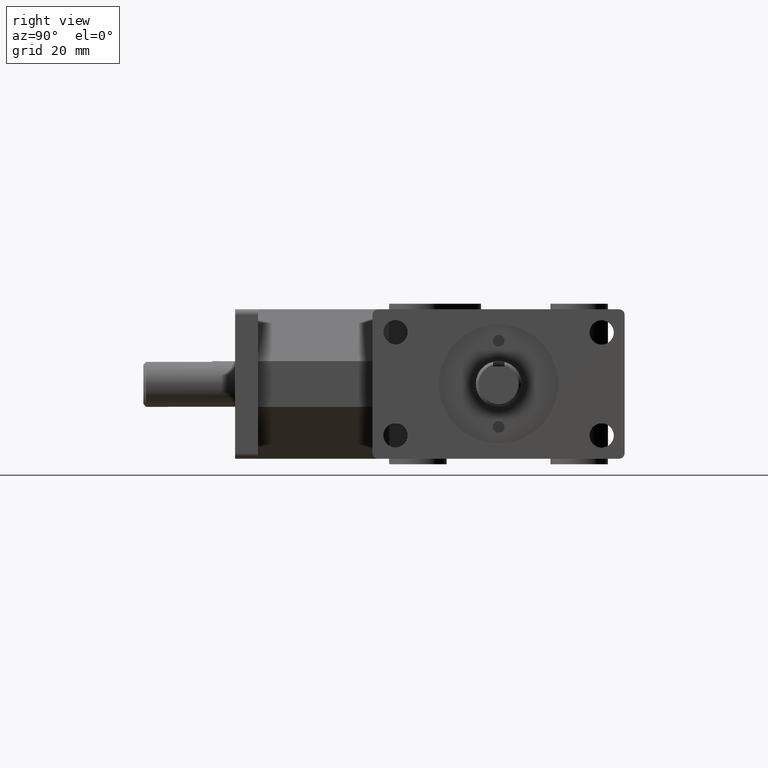
[diagram: clean part render]
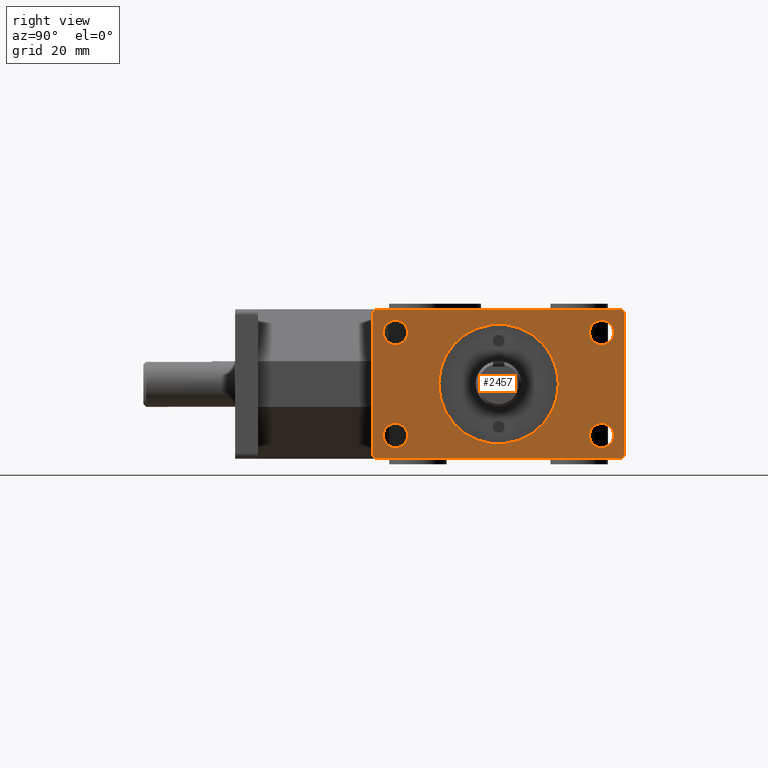
[diagram: same view with one face highlighted and labeled with its STEP entity id]
A machine part, right view. The second image highlights one B-rep face of the part: STEP entity #2457.
In plain terms, the highlighted planar face has unit normal (1, 0, 0).
Its self-contained STEP definition (entity closure, byte-faithful):
#56=FACE_BOUND('',#466,.T.);
#57=FACE_BOUND('',#467,.T.);
#58=FACE_BOUND('',#468,.T.);
#59=FACE_BOUND('',#469,.T.);
#60=FACE_BOUND('',#470,.T.);
#136=CIRCLE('',#2592,0.652);
#159=CIRCLE('',#2628,0.06);
#161=CIRCLE('',#2631,0.06);
#163=CIRCLE('',#2634,0.06);
#165=CIRCLE('',#2637,0.06);
#195=CIRCLE('',#2701,0.1325);
#196=CIRCLE('',#2702,0.1325);
#197=CIRCLE('',#2703,0.1325);
#198=CIRCLE('',#2704,0.1325);
#299=FACE_OUTER_BOUND('',#465,.T.);
#465=EDGE_LOOP('',(#2016,#2017,#2018,#2019,#2020,#2021,#2022,#2023));
#466=EDGE_LOOP('',(#2024));
#467=EDGE_LOOP('',(#2025));
#468=EDGE_LOOP('',(#2026));
#469=EDGE_LOOP('',(#2027));
#470=EDGE_LOOP('',(#2028));
#552=LINE('',#3535,#780);
#610=LINE('',#3673,#838);
#715=LINE('',#4061,#943);
#716=LINE('',#4063,#944);
#780=VECTOR('',#2794,1.);
#838=VECTOR('',#2882,1.);
#943=VECTOR('',#3299,1.);
#944=VECTOR('',#3302,1.);
#1008=VERTEX_POINT('',#3532);
#1009=VERTEX_POINT('',#3534);
#1073=VERTEX_POINT('',#3670);
#1074=VERTEX_POINT('',#3672);
#1116=VERTEX_POINT('',#3802);
#1139=VERTEX_POINT('',#3871);
#1141=VERTEX_POINT('',#3877);
#1143=VERTEX_POINT('',#3883);
#1145=VERTEX_POINT('',#3889);
#1196=VERTEX_POINT('',#4064);
#1197=VERTEX_POINT('',#4066);
#1198=VERTEX_POINT('',#4068);
#1199=VERTEX_POINT('',#4070);
#1242=EDGE_CURVE('',#1009,#1008,#552,.T.);
#1311=EDGE_CURVE('',#1074,#1073,#610,.T.);
#1374=EDGE_CURVE('',#1116,#1116,#136,.T.);
#1407=EDGE_CURVE('',#1139,#1073,#159,.T.);
#1410=EDGE_CURVE('',#1009,#1141,#161,.T.);
#1413=EDGE_CURVE('',#1143,#1008,#163,.T.);
#1416=EDGE_CURVE('',#1074,#1145,#165,.T.);
#1500=EDGE_CURVE('',#1141,#1139,#715,.T.);
#1501=EDGE_CURVE('',#1143,#1145,#716,.T.);
#1502=EDGE_CURVE('',#1196,#1196,#195,.T.);
#1503=EDGE_CURVE('',#1197,#1197,#196,.T.);
#1504=EDGE_CURVE('',#1198,#1198,#197,.T.);
#1505=EDGE_CURVE('',#1199,#1199,#198,.T.);
#2016=ORIENTED_EDGE('',*,*,#1407,.F.);
#2017=ORIENTED_EDGE('',*,*,#1500,.F.);
#2018=ORIENTED_EDGE('',*,*,#1410,.F.);
#2019=ORIENTED_EDGE('',*,*,#1242,.T.);
#2020=ORIENTED_EDGE('',*,*,#1413,.F.);
#2021=ORIENTED_EDGE('',*,*,#1501,.T.);
#2022=ORIENTED_EDGE('',*,*,#1416,.F.);
#2023=ORIENTED_EDGE('',*,*,#1311,.T.);
#2024=ORIENTED_EDGE('',*,*,#1502,.T.);
#2025=ORIENTED_EDGE('',*,*,#1503,.T.);
#2026=ORIENTED_EDGE('',*,*,#1504,.T.);
#2027=ORIENTED_EDGE('',*,*,#1505,.T.);
#2028=ORIENTED_EDGE('',*,*,#1374,.T.);
#2342=PLANE('',#2700);
#2457=ADVANCED_FACE('',(#299,#56,#57,#58,#59,#60),#2342,.T.);
#2592=AXIS2_PLACEMENT_3D('',#3803,#3018,#3019);
#2628=AXIS2_PLACEMENT_3D('',#3872,#3100,#3101);
#2631=AXIS2_PLACEMENT_3D('',#3878,#3107,#3108);
#2634=AXIS2_PLACEMENT_3D('',#3884,#3114,#3115);
#2637=AXIS2_PLACEMENT_3D('',#3890,#3121,#3122);
#2700=AXIS2_PLACEMENT_3D('',#4062,#3300,#3301);
#2701=AXIS2_PLACEMENT_3D('',#4065,#3303,#3304);
#2702=AXIS2_PLACEMENT_3D('',#4067,#3305,#3306);
#2703=AXIS2_PLACEMENT_3D('',#4069,#3307,#3308);
#2704=AXIS2_PLACEMENT_3D('',#4071,#3309,#3310);
#2794=DIRECTION('',(0.,-1.,0.));
#2882=DIRECTION('',(0.,1.,0.));
#3018=DIRECTION('center_axis',(-1.,0.,0.));
#3019=DIRECTION('ref_axis',(0.,1.,0.));
#3100=DIRECTION('center_axis',(-1.,0.,0.));
#3101=DIRECTION('ref_axis',(0.,0.70710678118654,-0.707106781186555));
#3107=DIRECTION('center_axis',(-1.,0.,0.));
#3108=DIRECTION('ref_axis',(0.,0.70710678118654,0.707106781186555));
#3114=DIRECTION('center_axis',(-1.,0.,0.));
#3115=DIRECTION('ref_axis',(0.,-0.707106781186548,0.707106781186548));
#3121=DIRECTION('center_axis',(-1.,0.,0.));
#3122=DIRECTION('ref_axis',(0.,-0.707106781186548,-0.707106781186548));
#3299=DIRECTION('',(0.,0.,-1.));
#3300=DIRECTION('center_axis',(1.,0.,0.));
#3301=DIRECTION('ref_axis',(0.,-1.,0.));
#3302=DIRECTION('',(0.,0.,-1.));
#3303=DIRECTION('center_axis',(-1.,0.,0.));
#3304=DIRECTION('ref_axis',(0.,1.,0.));
#3305=DIRECTION('center_axis',(-1.,0.,0.));
#3306=DIRECTION('ref_axis',(0.,1.,0.));
#3307=DIRECTION('center_axis',(-1.,0.,0.));
#3308=DIRECTION('ref_axis',(0.,1.,0.));
#3309=DIRECTION('center_axis',(-1.,0.,0.));
#3310=DIRECTION('ref_axis',(0.,1.,0.));
#3532=CARTESIAN_POINT('',(1.875,1.56,0.815));
#3534=CARTESIAN_POINT('',(1.875,4.19,0.815));
#3535=CARTESIAN_POINT('',(1.875,4.25,0.815));
#3670=CARTESIAN_POINT('',(1.875,4.19,-0.815));
#3672=CARTESIAN_POINT('',(1.875,1.56,-0.815));
#3673=CARTESIAN_POINT('',(1.875,4.25,-0.815));
#3802=CARTESIAN_POINT('',(1.875,2.223,7.98469713044074E-17));
#3803=CARTESIAN_POINT('Origin',(1.875,2.875,0.));
#3871=CARTESIAN_POINT('',(1.875,4.25,-0.755));
#3872=CARTESIAN_POINT('Origin',(1.875,4.19,-0.755));
#3877=CARTESIAN_POINT('',(1.875,4.25,0.755));
#3878=CARTESIAN_POINT('Origin',(1.875,4.19,0.755));
#3883=CARTESIAN_POINT('',(1.875,1.5,0.755));
#3884=CARTESIAN_POINT('Origin',(1.875,1.56,0.755));
#3889=CARTESIAN_POINT('',(1.875,1.5,-0.755));
#3890=CARTESIAN_POINT('Origin',(1.875,1.56,-0.755));
#4061=CARTESIAN_POINT('',(1.875,4.25,0.));
#4062=CARTESIAN_POINT('Origin',(1.875,1.5,0.));
#4063=CARTESIAN_POINT('',(1.875,1.5,0.));
#4064=CARTESIAN_POINT('',(1.875,3.8675,-0.562));
#4065=CARTESIAN_POINT('Origin',(1.875,4.,-0.562));
#4066=CARTESIAN_POINT('',(1.875,1.6175,-0.562));
#4067=CARTESIAN_POINT('Origin',(1.875,1.75,-0.562));
#4068=CARTESIAN_POINT('',(1.875,1.6175,0.562));
#4069=CARTESIAN_POINT('Origin',(1.875,1.75,0.562));
#4070=CARTESIAN_POINT('',(1.875,3.8675,0.562));
#4071=CARTESIAN_POINT('Origin',(1.875,4.,0.562));